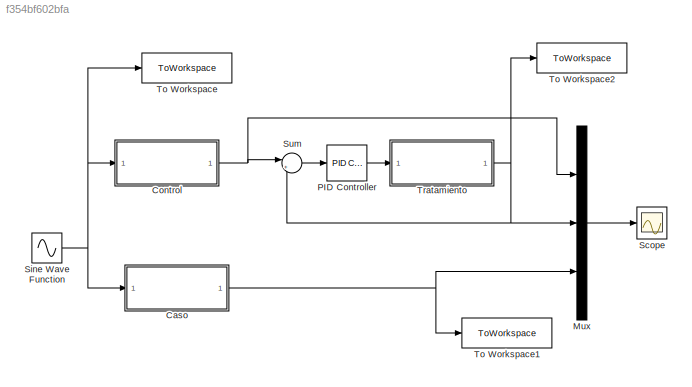
MODEL slx_f354bf602bfa
KIND model
CONFIG AbsTol = auto
CONFIG EnableMultiTasking = off
CONFIG FixedStep = auto
CONFIG MaxStep = auto
CONFIG MinStep = auto
CONFIG RelTol = 1e-3
CONFIG SampleTimeConstraint = Unconstrained
CONFIG SolverName = ode15s
CONFIG StartTime = 0.0
CONFIG StopTime = 10.0
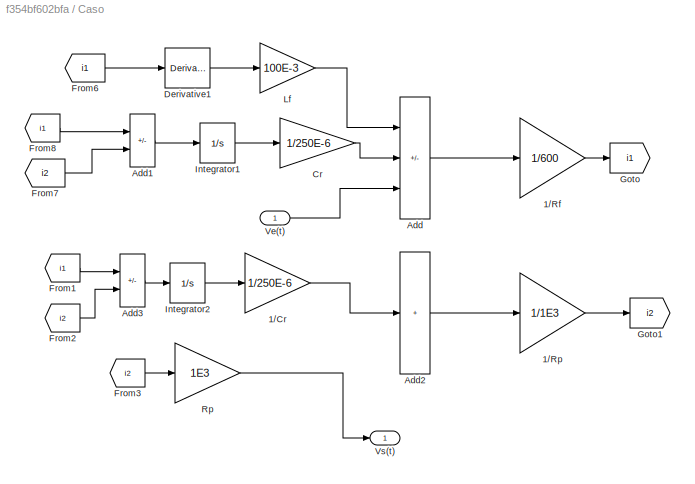
BLOCK [SubSystem] Caso
BLOCK [Gain] Caso/1//Cr
  Gain = 1/250E-6
BLOCK [Gain] Caso/1//Rf
  Gain = 1/600
BLOCK [Gain] Caso/1//Rp
  Gain = 1/1E3
BLOCK [Sum] Caso/Add
  IconShape = rectangular
  Inputs = --+
BLOCK [Sum] Caso/Add1
  IconShape = rectangular
  Inputs = +-
BLOCK [Sum] Caso/Add2
  IconShape = rectangular
  Inputs = +
BLOCK [Sum] Caso/Add3
  IconShape = rectangular
  Inputs = +-
BLOCK [Gain] Caso/Cr
  Gain = 1/250E-6
BLOCK [Derivative] Caso/Derivative1
BLOCK [From] Caso/From1
  GotoTag = i1
BLOCK [From] Caso/From2
  GotoTag = i2
BLOCK [From] Caso/From3
  GotoTag = i2
BLOCK [From] Caso/From6
  GotoTag = i1
BLOCK [From] Caso/From7
  GotoTag = i2
BLOCK [From] Caso/From8
  GotoTag = i1
BLOCK [Goto] Caso/Goto
  GotoTag = i1
BLOCK [Goto] Caso/Goto1
  GotoTag = i2
BLOCK [Integrator] Caso/Integrator1
BLOCK [Integrator] Caso/Integrator2
BLOCK [Gain] Caso/Lf
  Gain = 100E-3
BLOCK [Gain] Caso/Rp
  Gain = 1E3
BLOCK [Inport] Caso/Ve(t)
BLOCK [Outport] Caso/Vs(t)
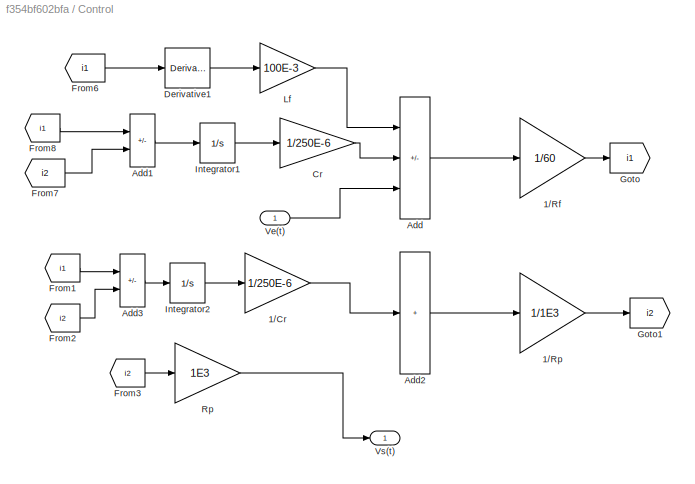
BLOCK [SubSystem] Control
BLOCK [Gain] Control/1//Cr
  Gain = 1/250E-6
BLOCK [Gain] Control/1//Rf
  Gain = 1/60
BLOCK [Gain] Control/1//Rp
  Gain = 1/1E3
BLOCK [Sum] Control/Add
  IconShape = rectangular
  Inputs = --+
BLOCK [Sum] Control/Add1
  IconShape = rectangular
  Inputs = +-
BLOCK [Sum] Control/Add2
  IconShape = rectangular
  Inputs = +
BLOCK [Sum] Control/Add3
  IconShape = rectangular
  Inputs = +-
BLOCK [Gain] Control/Cr
  Gain = 1/250E-6
BLOCK [Derivative] Control/Derivative1
BLOCK [From] Control/From1
  GotoTag = i1
BLOCK [From] Control/From2
  GotoTag = i2
BLOCK [From] Control/From3
  GotoTag = i2
BLOCK [From] Control/From6
  GotoTag = i1
BLOCK [From] Control/From7
  GotoTag = i2
BLOCK [From] Control/From8
  GotoTag = i1
BLOCK [Goto] Control/Goto
  GotoTag = i1
BLOCK [Goto] Control/Goto1
  GotoTag = i2
BLOCK [Integrator] Control/Integrator1
BLOCK [Integrator] Control/Integrator2
BLOCK [Gain] Control/Lf
  Gain = 100E-3
BLOCK [Gain] Control/Rp
  Gain = 1E3
BLOCK [Inport] Control/Ve(t)
BLOCK [Outport] Control/Vs(t)
BLOCK [Mux] Mux
  DisplayOption = bar
  Inputs = 3
BLOCK [Reference] PID Controller  REF=slpidlib/PID Controller
  LibrarySourceBlock = simulink/Continuous/PID Controller
  SourceBlock = slpidlib/PID Controller
  SourceType = PID 1dof
BLOCK [Scope] Scope
  Floating = off
  NumInputPorts = 1
  ScopeSpecificationString = Simulink.scopes.TimeScopeBlockCfg('CurrentConfiguration', extmgr.ConfigurationSet(extmgr.Configuration('Core','General UI',true),extmgr.Configuration('Core','Source UI',true),extmgr.Configuration('Sources','WiredSimulink',true),extmgr.Configuration('Visuals','Time Domain',true,'SerializedDisplays',{struct('MinYLimReal','-1','MaxYLimReal','1','YLabelReal','','MinYLimMag','0.0000000','MaxYLimMag','0...<+1762ch>
BLOCK [Sin] Sine Wave Function
  Frequency = 1.5708
  SampleTime = 0.001
BLOCK [Sum] Sum
  Inputs = |+-
BLOCK [ToWorkspace] To Workspace
  FixptAsFi = on
  MaxDataPoints = inf
  SampleTime = -1
  VariableName = Ve
BLOCK [ToWorkspace] To Workspace1
  FixptAsFi = on
  MaxDataPoints = inf
  SampleTime = -1
  VariableName = Vs
BLOCK [ToWorkspace] To Workspace2
  FixptAsFi = on
  MaxDataPoints = inf
  SampleTime = -1
  VariableName = VPID
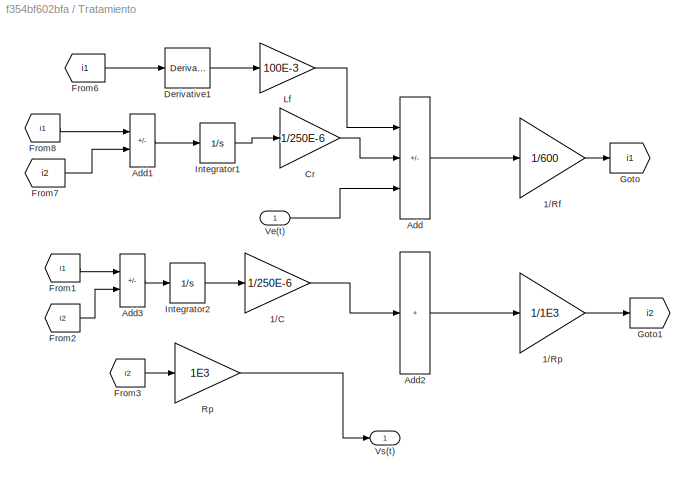
BLOCK [SubSystem] Tratamiento
BLOCK [Gain] Tratamiento/1//C
  Gain = 1/250E-6
BLOCK [Gain] Tratamiento/1//Rf
  Gain = 1/600
BLOCK [Gain] Tratamiento/1//Rp
  Gain = 1/1E3
BLOCK [Sum] Tratamiento/Add
  IconShape = rectangular
  Inputs = --+
BLOCK [Sum] Tratamiento/Add1
  IconShape = rectangular
  Inputs = +-
BLOCK [Sum] Tratamiento/Add2
  IconShape = rectangular
  Inputs = +
BLOCK [Sum] Tratamiento/Add3
  IconShape = rectangular
  Inputs = +-
BLOCK [Gain] Tratamiento/Cr
  Gain = 1/250E-6
BLOCK [Derivative] Tratamiento/Derivative1
BLOCK [From] Tratamiento/From1
  GotoTag = i1
BLOCK [From] Tratamiento/From2
  GotoTag = i2
BLOCK [From] Tratamiento/From3
  GotoTag = i2
BLOCK [From] Tratamiento/From6
  GotoTag = i1
BLOCK [From] Tratamiento/From7
  GotoTag = i2
BLOCK [From] Tratamiento/From8
  GotoTag = i1
BLOCK [Goto] Tratamiento/Goto
  GotoTag = i1
BLOCK [Goto] Tratamiento/Goto1
  GotoTag = i2
BLOCK [Integrator] Tratamiento/Integrator1
BLOCK [Integrator] Tratamiento/Integrator2
BLOCK [Gain] Tratamiento/Lf
  Gain = 100E-3
BLOCK [Gain] Tratamiento/Rp
  Gain = 1E3
BLOCK [Inport] Tratamiento/Ve(t)
BLOCK [Outport] Tratamiento/Vs(t)
LINE Caso/1//Cr:1 -> Caso/Add2:1
LINE Caso/1//Rf:1 -> Caso/Goto:1
LINE Caso/1//Rp:1 -> Caso/Goto1:1
LINE Caso/Add1:1 -> Caso/Integrator1:1
LINE Caso/Add2:1 -> Caso/1//Rp:1
LINE Caso/Add3:1 -> Caso/Integrator2:1
LINE Caso/Add:1 -> Caso/1//Rf:1
LINE Caso/Cr:1 -> Caso/Add:2
LINE Caso/Derivative1:1 -> Caso/Lf:1
LINE Caso/From1:1 -> Caso/Add3:1
LINE Caso/From2:1 -> Caso/Add3:2
LINE Caso/From3:1 -> Caso/Rp:1
LINE Caso/From6:1 -> Caso/Derivative1:1
LINE Caso/From7:1 -> Caso/Add1:2
LINE Caso/From8:1 -> Caso/Add1:1
LINE Caso/Integrator1:1 -> Caso/Cr:1
LINE Caso/Integrator2:1 -> Caso/1//Cr:1
LINE Caso/Lf:1 -> Caso/Add:1
LINE Caso/Rp:1 -> Caso/Vs(t):1
LINE Caso/Ve(t):1 -> Caso/Add:3
NET Caso:1 -> Mux:3, To Workspace1:1
LINE Control/1//Cr:1 -> Control/Add2:1
LINE Control/1//Rf:1 -> Control/Goto:1
LINE Control/1//Rp:1 -> Control/Goto1:1
LINE Control/Add1:1 -> Control/Integrator1:1
LINE Control/Add2:1 -> Control/1//Rp:1
LINE Control/Add3:1 -> Control/Integrator2:1
LINE Control/Add:1 -> Control/1//Rf:1
LINE Control/Cr:1 -> Control/Add:2
LINE Control/Derivative1:1 -> Control/Lf:1
LINE Control/From1:1 -> Control/Add3:1
LINE Control/From2:1 -> Control/Add3:2
LINE Control/From3:1 -> Control/Rp:1
LINE Control/From6:1 -> Control/Derivative1:1
LINE Control/From7:1 -> Control/Add1:2
LINE Control/From8:1 -> Control/Add1:1
LINE Control/Integrator1:1 -> Control/Cr:1
LINE Control/Integrator2:1 -> Control/1//Cr:1
LINE Control/Lf:1 -> Control/Add:1
LINE Control/Rp:1 -> Control/Vs(t):1
LINE Control/Ve(t):1 -> Control/Add:3
NET Control:1 -> Mux:1, Sum:1
LINE Mux:1 -> Scope:1
LINE PID Controller:1 -> Tratamiento:1
NET Sine Wave Function:1 -> Caso:1, Control:1, To Workspace:1
LINE Sum:1 -> PID Controller:1
LINE Tratamiento/1//C:1 -> Tratamiento/Add2:1
LINE Tratamiento/1//Rf:1 -> Tratamiento/Goto:1
LINE Tratamiento/1//Rp:1 -> Tratamiento/Goto1:1
LINE Tratamiento/Add1:1 -> Tratamiento/Integrator1:1
LINE Tratamiento/Add2:1 -> Tratamiento/1//Rp:1
LINE Tratamiento/Add3:1 -> Tratamiento/Integrator2:1
LINE Tratamiento/Add:1 -> Tratamiento/1//Rf:1
LINE Tratamiento/Cr:1 -> Tratamiento/Add:2
LINE Tratamiento/Derivative1:1 -> Tratamiento/Lf:1
LINE Tratamiento/From1:1 -> Tratamiento/Add3:1
LINE Tratamiento/From2:1 -> Tratamiento/Add3:2
LINE Tratamiento/From3:1 -> Tratamiento/Rp:1
LINE Tratamiento/From6:1 -> Tratamiento/Derivative1:1
LINE Tratamiento/From7:1 -> Tratamiento/Add1:2
LINE Tratamiento/From8:1 -> Tratamiento/Add1:1
LINE Tratamiento/Integrator1:1 -> Tratamiento/Cr:1
LINE Tratamiento/Integrator2:1 -> Tratamiento/1//C:1
LINE Tratamiento/Lf:1 -> Tratamiento/Add:1
LINE Tratamiento/Rp:1 -> Tratamiento/Vs(t):1
LINE Tratamiento/Ve(t):1 -> Tratamiento/Add:3
NET Tratamiento:1 -> Mux:2, Sum:2, To Workspace2:1
note: NET lines group one-source signal fan-out (src -> all destinations, sorted); 1:1 wires keep LINE
